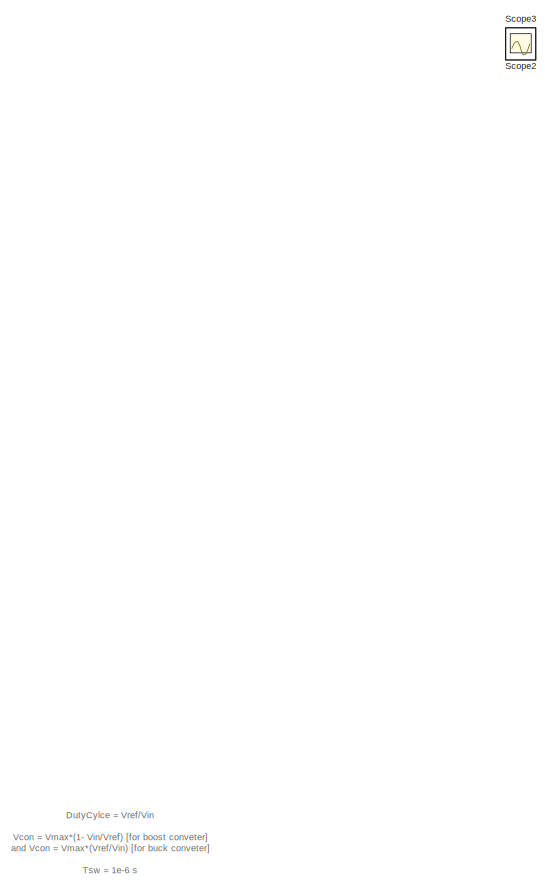
[diagram: root canvas - part 1/2, left side, full height]
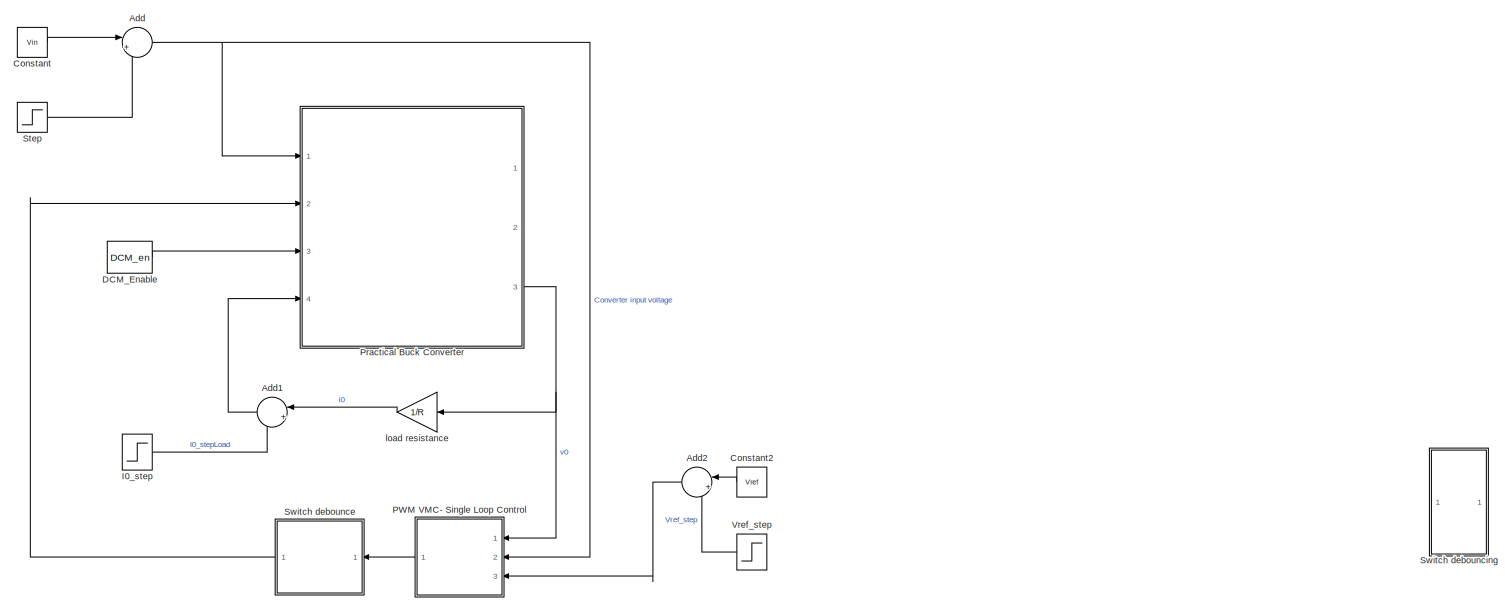
[diagram: root canvas - part 2/2, central region]
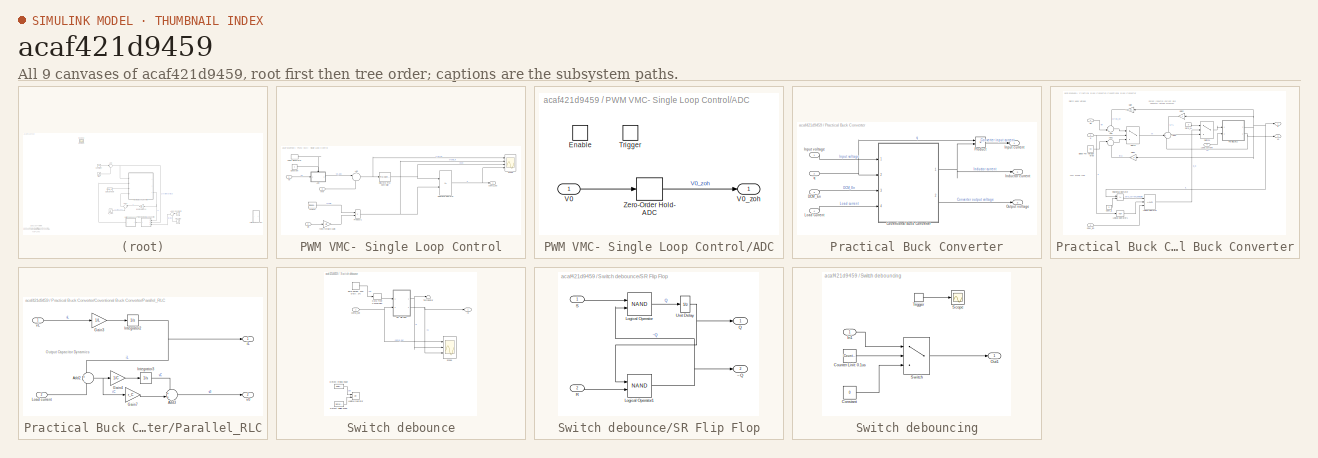
[diagram: thumbnail index - all 9 canvases of the model, root first then tree order]
MODEL slx_acaf421d9459
KIND model
CONFIG AbsTol = auto
CONFIG EnableMultiTasking = off
CONFIG FixedStep = Ts
CONFIG InitFcn = %init_practical_voltage_source;\ninit_parameters;
CONFIG MaxStep = auto
CONFIG MinStep = auto
CONFIG PostLoadFcn = , if any(exist('dsrtsu_mdlpostloadfcn', 'file') == [2, 3, 6]), try dsrtsu_mdlpostloadfcn('Execute', bdroot); catch fprintf('Error in PostLoadFcn (dsrtsu_mdlpostloadfcn) for model "%s":\n %s\n', bdroot, lasterr); end, end, \n%init_practical_voltage_source;\ninit_parameters;\n
CONFIG RelTol = 1e-3
CONFIG SampleTimeConstraint = Unconstrained
CONFIG Solver = FixedStepAuto
CONFIG SolverName = FixedStepAuto
CONFIG StartTime = 0.0
CONFIG StopTime = 3e-3
BLOCK [Sum] Add
  IconShape = round
  InputSameDT = off
  Inputs = |++
  OutDataTypeStr = Inherit: Inherit via internal rule
  Ports = [2, 1]
  SaturateOnIntegerOverflow = off
BLOCK [Sum] Add1
  IconShape = round
  InputSameDT = off
  Inputs = |++
  OutDataTypeStr = Inherit: Inherit via internal rule
  Ports = [2, 1]
  SaturateOnIntegerOverflow = off
BLOCK [Sum] Add2
  IconShape = round
  InputSameDT = off
  Inputs = |++
  OutDataTypeStr = Inherit: Inherit via internal rule
  Ports = [2, 1]
  SaturateOnIntegerOverflow = off
BLOCK [Constant] Constant
  Value = Vin
BLOCK [Constant] Constant2
  Value = Vref
BLOCK [Constant] DCM_Enable
  OutDataTypeStr = boolean
  Value = DCM_en
BLOCK [Step] I0_step
  After = I0_final
  SampleTime = Ts
  Time = I0_stepTime
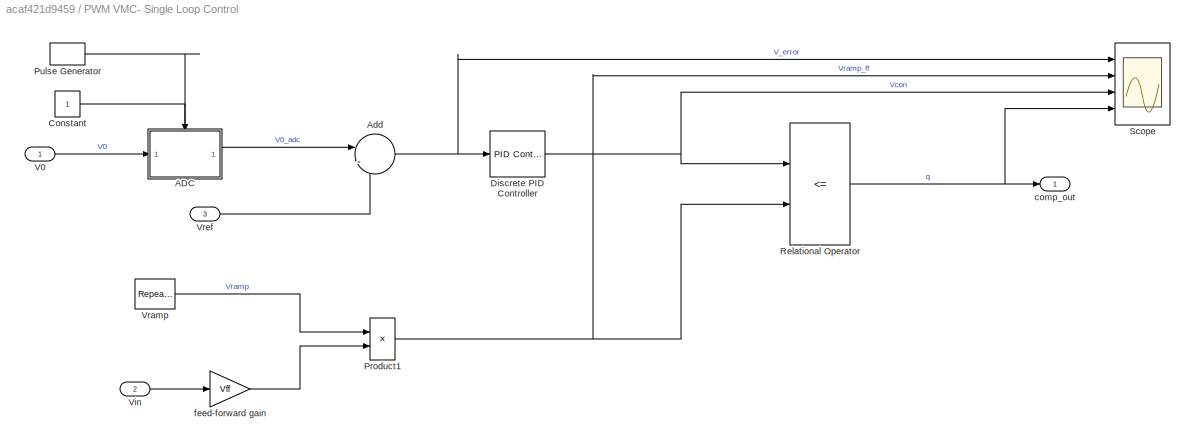
BLOCK [SubSystem] PWM VMC- Single Loop Control
  Ports = [3, 1]
  RequestExecContextInheritance = off
  Variant = off
BLOCK [SubSystem] PWM VMC- Single Loop Control/ADC
  Ports = [1, 1, 1, 1]
  RequestExecContextInheritance = off
  ShowPortLabels = none
  Variant = off
BLOCK [EnablePort] PWM VMC- Single Loop Control/ADC/Enable
  Ports = []
BLOCK [TriggerPort] PWM VMC- Single Loop Control/ADC/Trigger
  PortDimensions = 1
  Ports = []
  StatesWhenEnabling = held
  VariantControl = Variant
BLOCK [Inport] PWM VMC- Single Loop Control/ADC/V0
  IconDisplay = Port number
BLOCK [Outport] PWM VMC- Single Loop Control/ADC/V0_zoh
  IconDisplay = Port number
BLOCK [ZeroOrderHold] PWM VMC- Single Loop Control/ADC/Zero-Order Hold- ADC
  SampleTime = -1
BLOCK [Sum] PWM VMC- Single Loop Control/Add
  IconShape = round
  InputSameDT = off
  Inputs = |-+
  OutDataTypeStr = Inherit: Inherit via internal rule
  Ports = [2, 1]
  SaturateOnIntegerOverflow = off
BLOCK [Constant] PWM VMC- Single Loop Control/Constant
BLOCK [Reference] PWM VMC- Single Loop Control/Discrete PID Controller  REF=simulink/Continuous/PID Controller
  Ports = [1, 1]
  SourceBlock = simulink/Continuous/PID Controller
  SourceProductBaseCode = SL
  SourceType = PID 1dof
BLOCK [Product] PWM VMC- Single Loop Control/Product1
  InputSameDT = off
  OutDataTypeStr = Inherit: Inherit via internal rule
  Ports = [2, 1]
  RndMeth = Floor
  SaturateOnIntegerOverflow = off
BLOCK [DiscretePulseGenerator] PWM VMC- Single Loop Control/Pulse Generator
  Period = Tsw
  PhaseDelay = t_s
  Ports = [0, 1]
  PulseType = Time based
BLOCK [RelationalOperator] PWM VMC- Single Loop Control/Relational Operator
  InputSameDT = off
  Operator = <=
  OutDataTypeStr = boolean
  Ports = [2, 1]
  RndMeth = Simplest
BLOCK [Scope] PWM VMC- Single Loop Control/Scope
  NumInputPorts = 4
  Ports = [4]
  ScopeSpecificationString = Simulink.scopes.TimeScopeBlockCfg('CurrentConfiguration', extmgr.ConfigurationSet(extmgr.Configuration('Core','General UI',true),extmgr.Configuration('Core','Source UI',true),extmgr.Configuration('Sources','WiredSimulink',true,'DataLoggingVariableName','ScopeData1'),extmgr.Configuration('Visuals','Time Domain',true,'SerializedDisplays',{struct('MinYLimReal','-1.37062','MaxYLimReal','1.2634','YLabe...<+3433ch>
BLOCK [Inport] PWM VMC- Single Loop Control/V0
  IconDisplay = Port number
BLOCK [Inport] PWM VMC- Single Loop Control/Vin
  IconDisplay = Port number
  Port = 2
BLOCK [Reference] PWM VMC- Single Loop Control/Vramp  REF=simulink/Sources/Repeating
Sequence
  Ports = [0, 1]
  SourceBlock = simulink/Sources/Repeating\nSequence
  SourceProductBaseCode = SL
  SourceType = Repeating table
BLOCK [Inport] PWM VMC- Single Loop Control/Vref
  IconDisplay = Port number
  Port = 3
BLOCK [Outport] PWM VMC- Single Loop Control/comp_out
  IconDisplay = Port number
BLOCK [Gain] PWM VMC- Single Loop Control/feed-forward gain
  Gain = Vff
  OutDataTypeStr = Inherit: Inherit via internal rule
  ParamDataTypeStr = Inherit: Inherit via internal rule
  SaturateOnIntegerOverflow = off
BLOCK [SubSystem] Practical Buck Converter
  Ports = [4, 3]
  RequestExecContextInheritance = off
  Variant = off
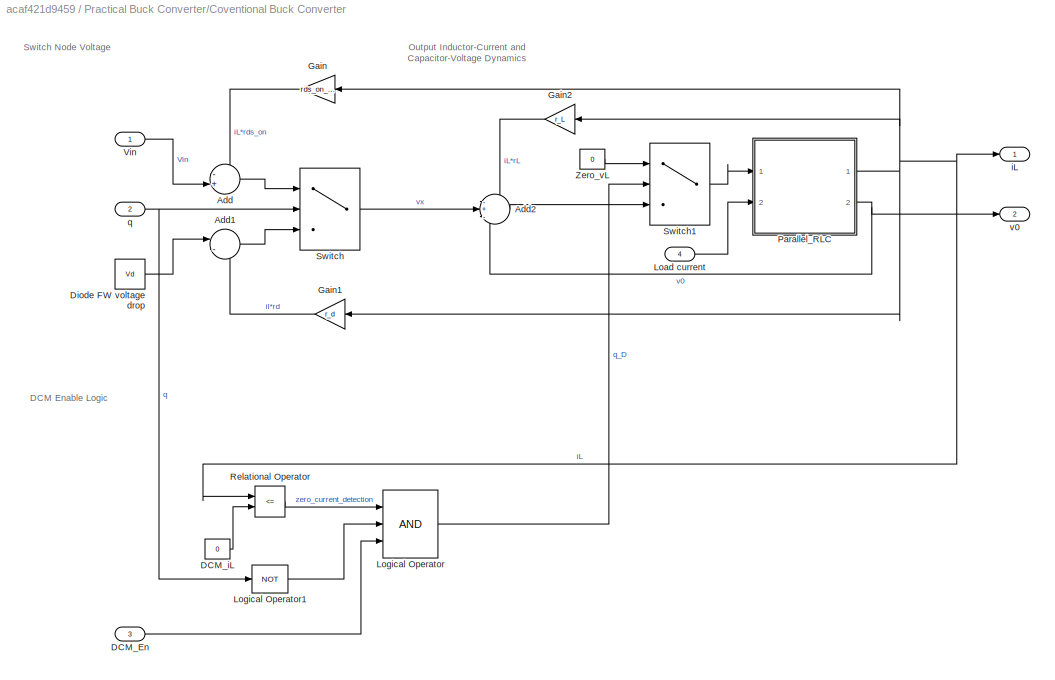
BLOCK [SubSystem] Practical Buck Converter/Coventional Buck Converter
  Ports = [4, 2]
  RequestExecContextInheritance = off
  Variant = off
BLOCK [Sum] Practical Buck Converter/Coventional Buck Converter/Add
  IconShape = round
  InputSameDT = off
  Inputs = -+|
  OutDataTypeStr = Inherit: Inherit via internal rule
  Ports = [2, 1]
  SaturateOnIntegerOverflow = off
BLOCK [Sum] Practical Buck Converter/Coventional Buck Converter/Add1
  IconShape = round
  InputSameDT = off
  Inputs = |--
  OutDataTypeStr = Inherit: Inherit via internal rule
  Ports = [2, 1]
  SaturateOnIntegerOverflow = off
BLOCK [Sum] Practical Buck Converter/Coventional Buck Converter/Add2
  IconShape = round
  InputSameDT = off
  Inputs = -+-
  OutDataTypeStr = Inherit: Inherit via internal rule
  Ports = [3, 1]
  SaturateOnIntegerOverflow = off
BLOCK [Inport] Practical Buck Converter/Coventional Buck Converter/DCM_En
  IconDisplay = Port number
  Port = 3
BLOCK [Constant] Practical Buck Converter/Coventional Buck Converter/DCM_iL
  Value = 0
BLOCK [Constant] Practical Buck Converter/Coventional Buck Converter/Diode FW voltage drop
  Value = Vd
BLOCK [Gain] Practical Buck Converter/Coventional Buck Converter/Gain
  Gain = rds_on_sw1
  OutDataTypeStr = Inherit: Inherit via internal rule
  ParamDataTypeStr = Inherit: Inherit via internal rule
  SaturateOnIntegerOverflow = off
BLOCK [Gain] Practical Buck Converter/Coventional Buck Converter/Gain1
  Gain = r_d
  OutDataTypeStr = Inherit: Inherit via internal rule
  ParamDataTypeStr = Inherit: Inherit via internal rule
  SaturateOnIntegerOverflow = off
BLOCK [Gain] Practical Buck Converter/Coventional Buck Converter/Gain2
  Gain = r_L
  OutDataTypeStr = Inherit: Inherit via internal rule
  ParamDataTypeStr = Inherit: Inherit via internal rule
  SaturateOnIntegerOverflow = off
BLOCK [Inport] Practical Buck Converter/Coventional Buck Converter/Load current
  IconDisplay = Port number
  Port = 4
BLOCK [Logic] Practical Buck Converter/Coventional Buck Converter/Logical Operator
  AllPortsSameDT = off
  IconShape = distinctive
  Inputs = 3
  OutDataTypeStr = boolean
  Ports = [3, 1]
BLOCK [Logic] Practical Buck Converter/Coventional Buck Converter/Logical Operator1
  AllPortsSameDT = off
  IconShape = distinctive
  Inputs = 3
  Operator = NOT
  OutDataTypeStr = boolean
  Ports = [1, 1]
BLOCK [SubSystem] Practical Buck Converter/Coventional Buck Converter/Parallel_RLC
  Ports = [2, 2]
  RequestExecContextInheritance = off
  Variant = off
BLOCK [Sum] Practical Buck Converter/Coventional Buck Converter/Parallel_RLC/Add2
  IconShape = round
  InputSameDT = off
  Inputs = +|-
  OutDataTypeStr = Inherit: Inherit via internal rule
  Ports = [2, 1]
  SaturateOnIntegerOverflow = off
BLOCK [Sum] Practical Buck Converter/Coventional Buck Converter/Parallel_RLC/Add3
  IconShape = round
  InputSameDT = off
  Inputs = ++|
  OutDataTypeStr = Inherit: Inherit via internal rule
  Ports = [2, 1]
  SaturateOnIntegerOverflow = off
BLOCK [Gain] Practical Buck Converter/Coventional Buck Converter/Parallel_RLC/Gain3
  Gain = 1/L
  OutDataTypeStr = Inherit: Inherit via internal rule
  ParamDataTypeStr = Inherit: Inherit via internal rule
  SaturateOnIntegerOverflow = off
BLOCK [Gain] Practical Buck Converter/Coventional Buck Converter/Parallel_RLC/Gain4
  Gain = 1/C
  OutDataTypeStr = Inherit: Inherit via internal rule
  ParamDataTypeStr = Inherit: Inherit via internal rule
  SaturateOnIntegerOverflow = off
BLOCK [Gain] Practical Buck Converter/Coventional Buck Converter/Parallel_RLC/Gain7
  Gain = r_C
  OutDataTypeStr = Inherit: Inherit via internal rule
  ParamDataTypeStr = Inherit: Inherit via internal rule
  SaturateOnIntegerOverflow = off
BLOCK [Integrator] Practical Buck Converter/Coventional Buck Converter/Parallel_RLC/Integrator2
  InitialCondition = i_L_init
  Ports = [1, 1]
BLOCK [Integrator] Practical Buck Converter/Coventional Buck Converter/Parallel_RLC/Integrator3
  InitialCondition = v_C_init
  Ports = [1, 1]
BLOCK [Inport] Practical Buck Converter/Coventional Buck Converter/Parallel_RLC/Load current
  IconDisplay = Port number
  Port = 2
BLOCK [Outport] Practical Buck Converter/Coventional Buck Converter/Parallel_RLC/iL
  IconDisplay = Port number
BLOCK [Outport] Practical Buck Converter/Coventional Buck Converter/Parallel_RLC/v0
  IconDisplay = Port number
  Port = 2
BLOCK [Inport] Practical Buck Converter/Coventional Buck Converter/Parallel_RLC/vL
  IconDisplay = Port number
BLOCK [RelationalOperator] Practical Buck Converter/Coventional Buck Converter/Relational Operator
  InputSameDT = off
  Operator = <=
  OutDataTypeStr = boolean
  Ports = [2, 1]
  RndMeth = Simplest
BLOCK [Switch] Practical Buck Converter/Coventional Buck Converter/Switch
  Criteria = u2 > Threshold
  InputSameDT = off
  SaturateOnIntegerOverflow = off
  Threshold = 0.5
BLOCK [Switch] Practical Buck Converter/Coventional Buck Converter/Switch1
  Criteria = u2 > Threshold
  InputSameDT = off
  SaturateOnIntegerOverflow = off
  Threshold = 0.5
BLOCK [Inport] Practical Buck Converter/Coventional Buck Converter/Vin
  IconDisplay = Port number
BLOCK [Constant] Practical Buck Converter/Coventional Buck Converter/Zero_vL
  Value = 0
BLOCK [Outport] Practical Buck Converter/Coventional Buck Converter/iL
  IconDisplay = Port number
BLOCK [Inport] Practical Buck Converter/Coventional Buck Converter/q
  IconDisplay = Port number
  Port = 2
BLOCK [Outport] Practical Buck Converter/Coventional Buck Converter/v0
  IconDisplay = Port number
  Port = 2
BLOCK [Inport] Practical Buck Converter/DCM_En
  IconDisplay = Port number
  Port = 3
BLOCK [Outport] Practical Buck Converter/Inductor current
  IconDisplay = Port number
  Port = 2
BLOCK [Outport] Practical Buck Converter/Input current
  IconDisplay = Port number
BLOCK [Inport] Practical Buck Converter/Input voltage
  IconDisplay = Port number
BLOCK [Inport] Practical Buck Converter/Load Current
  IconDisplay = Port number
  Port = 4
BLOCK [Outport] Practical Buck Converter/Output voltage
  IconDisplay = Port number
  Port = 3
BLOCK [Product] Practical Buck Converter/Product
  InputSameDT = off
  OutDataTypeStr = Inherit: Inherit via internal rule
  Ports = [2, 1]
  RndMeth = Floor
  SaturateOnIntegerOverflow = off
BLOCK [Inport] Practical Buck Converter/q
  IconDisplay = Port number
  Port = 2
BLOCK [Scope] Scope2
  IOType = viewer
  NumInputPorts = 1
  Ports = []
  ScopeSpecificationString = Simulink.scopes.TimeScopeBlockCfg('CurrentConfiguration', extmgr.ConfigurationSet(extmgr.Configuration('Core','General UI',true),extmgr.Configuration('Core','Source UI',true),extmgr.Configuration('Sources','WiredSimulink',true,'DataLoggingVariableName','ScopeData1'),extmgr.Configuration('Visuals','Time Domain',true,'SerializedDisplays',{struct('MinYLimReal','-0.125','MaxYLimReal','1.125','YLabelRe...<+1482ch>
BLOCK [Scope] Scope3
  IOType = viewer
  NumInputPorts = 1
  Ports = []
  ScopeSpecificationString = Simulink.scopes.TimeScopeBlockCfg('CurrentConfiguration', extmgr.ConfigurationSet(extmgr.Configuration('Core','General UI',true),extmgr.Configuration('Core','Source UI',true),extmgr.Configuration('Sources','WiredSimulink',true,'DataLoggingVariableName','ScopeData2'),extmgr.Configuration('Visuals','Time Domain',true,'SerializedDisplays',{struct('MinYLimReal','-5.75','MaxYLimReal','51.75','YLabelRea...<+1775ch>
BLOCK [Step] Step
  After = Vin_final
  SampleTime = 0
  Time = T_Vin_stepTime
BLOCK [SubSystem] Switch debounce
  Ports = [1, 1]
  RequestExecContextInheritance = off
  Variant = off
BLOCK [DataTypeConversion] Switch debounce/Data Type Conversion
  RndMeth = Floor
  SaturateOnIntegerOverflow = off
BLOCK [Reference] Switch debounce/Detect Falling enge  REF=simulink/Logic and Bit
Operations/Detect
Decrease
  Commented = on
  Ports = [1, 1]
  SourceBlock = simulink/Logic and Bit\nOperations/Detect\nDecrease
  SourceProductBaseCode = SL
  SourceType = Detect Decrease
BLOCK [Reference] Switch debounce/Detect Rising edge  REF=simulink/Logic and Bit
Operations/Detect
Increase
  Commented = on
  Ports = [1, 1]
  SourceBlock = simulink/Logic and Bit\nOperations/Detect\nIncrease
  SourceProductBaseCode = SL
  SourceType = Detect Increase
BLOCK [Logic] Switch debounce/Logical Operator
  AllPortsSameDT = off
  Commented = on
  IconShape = distinctive
  Operator = OR
  OutDataTypeStr = boolean
  Ports = [2, 1]
BLOCK [SubSystem] Switch debounce/SR Flip Flop
  Ports = [2, 2]
  RequestExecContextInheritance = off
  Variant = off
BLOCK [Logic] Switch debounce/SR Flip Flop/Logical Operator
  AllPortsSameDT = off
  IconShape = distinctive
  Operator = NAND
  OutDataTypeStr = boolean
  Ports = [2, 1]
BLOCK [Logic] Switch debounce/SR Flip Flop/Logical Operator1
  AllPortsSameDT = off
  IconShape = distinctive
  Operator = NAND
  OutDataTypeStr = boolean
  Ports = [2, 1]
BLOCK [Outport] Switch debounce/SR Flip Flop/Q
  IconDisplay = Port number
BLOCK [Inport] Switch debounce/SR Flip Flop/R
  IconDisplay = Port number
  Port = 2
BLOCK [Inport] Switch debounce/SR Flip Flop/S
  IconDisplay = Port number
BLOCK [UnitDelay] Switch debounce/SR Flip Flop/Unit Delay
  InputProcessing = Elements as channels (sample based)
  SampleTime = -1
BLOCK [Outport] Switch debounce/SR Flip Flop/~Q
  IconDisplay = Port number
  Port = 2
BLOCK [Scope] Switch debounce/Scope
  NumInputPorts = 3
  Ports = [3]
  ScopeSpecificationString = Simulink.scopes.TimeScopeBlockCfg('CurrentConfiguration', extmgr.ConfigurationSet(extmgr.Configuration('Core','General UI',true),extmgr.Configuration('Core','Source UI',true),extmgr.Configuration('Sources','WiredSimulink',true,'DataLoggingVariableName','ScopeData2'),extmgr.Configuration('Visuals','Time Domain',true,'SerializedDisplays',{struct('MinYLimReal','-0.125','MaxYLimReal','1.125','YLabelRe...<+2796ch>
BLOCK [Terminator] Switch debounce/Terminator
BLOCK [DiscretePulseGenerator] Switch debounce/Time period: Tsw Duty: 1%
  Period = Tsw
  Ports = [0, 1]
  PulseType = Time based
BLOCK [Inport] Switch debounce/comp_out
  IconDisplay = Port number
BLOCK [Outport] Switch debounce/~q
  IconDisplay = Port number
BLOCK [SubSystem] Switch debouncing
  Commented = on
  Ports = [1, 1, 0, 1]
  RequestExecContextInheritance = off
  TreatAsAtomicUnit = on
  Variant = off
BLOCK [Constant] Switch debouncing/Constant
  Value = 0
BLOCK [Reference] Switch debouncing/Counter Linit: 0.1us  REF=simulink/Sources/Counter
Limited
  Ports = [0, 1]
  SourceBlock = simulink/Sources/Counter\nLimited
  SourceProductBaseCode = SL
  SourceType = Counter Limited
BLOCK [Inport] Switch debouncing/In1
  IconDisplay = Port number
BLOCK [Outport] Switch debouncing/Out1
  IconDisplay = Port number
BLOCK [Scope] Switch debouncing/Scope
  NumInputPorts = 1
  Ports = [1]
  ScopeSpecificationString = Simulink.scopes.TimeScopeBlockCfg('CurrentConfiguration', extmgr.ConfigurationSet(extmgr.Configuration('Core','General UI',true),extmgr.Configuration('Core','Source UI',true),extmgr.Configuration('Sources','WiredSimulink',true,'DataLoggingVariableName','ScopeData4'),extmgr.Configuration('Visuals','Time Domain',true,'SerializedDisplays',{struct('MinYLimReal','0.9','MaxYLimReal','1.1','YLabelReal','...<+1357ch>
BLOCK [Switch] Switch debouncing/Switch
  InputSameDT = off
  SaturateOnIntegerOverflow = off
  Threshold = (0.45e-6/Ts) + 1
BLOCK [TriggerPort] Switch debouncing/Trigger
  PortDimensions = 1
  Ports = [0, 1]
  ShowOutputPort = on
  StatesWhenEnabling = held
  VariantControl = Variant
BLOCK [Step] Vref_step
  After = Vref_final
  SampleTime = Ts
  Time = Vref_stepTime
BLOCK [Gain] load resistance
  Gain = 1/R
  OutDataTypeStr = Inherit: Inherit via internal rule
  ParamDataTypeStr = Inherit: Inherit via internal rule
  SaturateOnIntegerOverflow = off
ANNOTATION (root): DutyCylce = Vref/Vin Vcon = Vmax*(1- Vin/Vref) [for boost conveter] and Vcon = Vmax*(Vref/Vin) [for buck conveter] Tsw = 1e-6 s Vref starts with 3.3V and after 1ms, it is set to 2.3V. DutyCycle shall be adapted accordingly and coverter states can be observed. Ideal voltage source is replaced by practical voltage source to aacout for psu output impedance (i.e. output resistance and finit bandwidt) ...<+125ch>
ANNOTATION Practical Buck Converter/Coventional Buck Converter: DCM Enable Logic
ANNOTATION Practical Buck Converter/Coventional Buck Converter: Output Inductor-Current and Capacitor-Voltage Dynamics
ANNOTATION Practical Buck Converter/Coventional Buck Converter: Switch Node Voltage
ANNOTATION Practical Buck Converter/Coventional Buck Converter/Parallel_RLC: Output Capacitor Dynamics
LINE Add1:1 -> Practical Buck Converter:4
LINE Add2:1 -> PWM VMC- Single Loop Control:3
NET Add:1 -> PWM VMC- Single Loop Control:2, Practical Buck Converter:1
LINE Constant2:1 -> Add2:1
LINE Constant:1 -> Add:1
LINE DCM_Enable:1 -> Practical Buck Converter:3
LINE I0_step:1 -> Add1:2
LINE PWM VMC- Single Loop Control/ADC/V0:1 -> PWM VMC- Single Loop Control/ADC/Zero-Order Hold- ADC:1
LINE PWM VMC- Single Loop Control/ADC/Zero-Order Hold- ADC:1 -> PWM VMC- Single Loop Control/ADC/V0_zoh:1
LINE PWM VMC- Single Loop Control/ADC:1 -> PWM VMC- Single Loop Control/Add:1
NET PWM VMC- Single Loop Control/Add:1 -> PWM VMC- Single Loop Control/Discrete PID Controller:1, PWM VMC- Single Loop Control/Scope:1
LINE PWM VMC- Single Loop Control/Constant:1 -> PWM VMC- Single Loop Control/ADC:enable
NET PWM VMC- Single Loop Control/Discrete PID Controller:1 -> PWM VMC- Single Loop Control/Relational Operator:1, PWM VMC- Single Loop Control/Scope:3
NET PWM VMC- Single Loop Control/Product1:1 -> PWM VMC- Single Loop Control/Relational Operator:2, PWM VMC- Single Loop Control/Scope:2
LINE PWM VMC- Single Loop Control/Pulse Generator:1 -> PWM VMC- Single Loop Control/ADC:trigger
NET PWM VMC- Single Loop Control/Relational Operator:1 -> PWM VMC- Single Loop Control/Scope:4, PWM VMC- Single Loop Control/comp_out:1
LINE PWM VMC- Single Loop Control/V0:1 -> PWM VMC- Single Loop Control/ADC:1
LINE PWM VMC- Single Loop Control/Vin:1 -> PWM VMC- Single Loop Control/feed-forward gain:1
LINE PWM VMC- Single Loop Control/Vramp:1 -> PWM VMC- Single Loop Control/Product1:1
LINE PWM VMC- Single Loop Control/Vref:1 -> PWM VMC- Single Loop Control/Add:2
LINE PWM VMC- Single Loop Control/feed-forward gain:1 -> PWM VMC- Single Loop Control/Product1:2
LINE PWM VMC- Single Loop Control:1 -> Switch debounce:1
LINE Practical Buck Converter/Coventional Buck Converter/Add1:1 -> Practical Buck Converter/Coventional Buck Converter/Switch:3
LINE Practical Buck Converter/Coventional Buck Converter/Add2:1 -> Practical Buck Converter/Coventional Buck Converter/Switch1:3
LINE Practical Buck Converter/Coventional Buck Converter/Add:1 -> Practical Buck Converter/Coventional Buck Converter/Switch:1
LINE Practical Buck Converter/Coventional Buck Converter/DCM_En:1 -> Practical Buck Converter/Coventional Buck Converter/Logical Operator:3
LINE Practical Buck Converter/Coventional Buck Converter/DCM_iL:1 -> Practical Buck Converter/Coventional Buck Converter/Relational Operator:2
LINE Practical Buck Converter/Coventional Buck Converter/Diode FW voltage drop:1 -> Practical Buck Converter/Coventional Buck Converter/Add1:1
LINE Practical Buck Converter/Coventional Buck Converter/Gain1:1 -> Practical Buck Converter/Coventional Buck Converter/Add1:2
LINE Practical Buck Converter/Coventional Buck Converter/Gain2:1 -> Practical Buck Converter/Coventional Buck Converter/Add2:1
LINE Practical Buck Converter/Coventional Buck Converter/Gain:1 -> Practical Buck Converter/Coventional Buck Converter/Add:1
LINE Practical Buck Converter/Coventional Buck Converter/Load current:1 -> Practical Buck Converter/Coventional Buck Converter/Parallel_RLC:2
LINE Practical Buck Converter/Coventional Buck Converter/Logical Operator1:1 -> Practical Buck Converter/Coventional Buck Converter/Logical Operator:2
LINE Practical Buck Converter/Coventional Buck Converter/Logical Operator:1 -> Practical Buck Converter/Coventional Buck Converter/Switch1:2
NET Practical Buck Converter/Coventional Buck Converter/Parallel_RLC/Add2:1 -> Practical Buck Converter/Coventional Buck Converter/Parallel_RLC/Gain4:1, Practical Buck Converter/Coventional Buck Converter/Parallel_RLC/Gain7:1
LINE Practical Buck Converter/Coventional Buck Converter/Parallel_RLC/Add3:1 -> Practical Buck Converter/Coventional Buck Converter/Parallel_RLC/v0:1
LINE Practical Buck Converter/Coventional Buck Converter/Parallel_RLC/Gain3:1 -> Practical Buck Converter/Coventional Buck Converter/Parallel_RLC/Integrator2:1
LINE Practical Buck Converter/Coventional Buck Converter/Parallel_RLC/Gain4:1 -> Practical Buck Converter/Coventional Buck Converter/Parallel_RLC/Integrator3:1
LINE Practical Buck Converter/Coventional Buck Converter/Parallel_RLC/Gain7:1 -> Practical Buck Converter/Coventional Buck Converter/Parallel_RLC/Add3:2
NET Practical Buck Converter/Coventional Buck Converter/Parallel_RLC/Integrator2:1 -> Practical Buck Converter/Coventional Buck Converter/Parallel_RLC/Add2:1, Practical Buck Converter/Coventional Buck Converter/Parallel_RLC/iL:1
LINE Practical Buck Converter/Coventional Buck Converter/Parallel_RLC/Integrator3:1 -> Practical Buck Converter/Coventional Buck Converter/Parallel_RLC/Add3:1
LINE Practical Buck Converter/Coventional Buck Converter/Parallel_RLC/Load current:1 -> Practical Buck Converter/Coventional Buck Converter/Parallel_RLC/Add2:2
LINE Practical Buck Converter/Coventional Buck Converter/Parallel_RLC/vL:1 -> Practical Buck Converter/Coventional Buck Converter/Parallel_RLC/Gain3:1
NET Practical Buck Converter/Coventional Buck Converter/Parallel_RLC:1 -> Practical Buck Converter/Coventional Buck Converter/Gain1:1, Practical Buck Converter/Coventional Buck Converter/Gain2:1, Practical Buck Converter/Coventional Buck Converter/Gain:1, Practical Buck Converter/Coventional Buck Converter/Relational Operator:1, Practical Buck Converter/Coventional Buck Converter/iL:1
NET Practical Buck Converter/Coventional Buck Converter/Parallel_RLC:2 -> Practical Buck Converter/Coventional Buck Converter/Add2:3, Practical Buck Converter/Coventional Buck Converter/v0:1
LINE Practical Buck Converter/Coventional Buck Converter/Relational Operator:1 -> Practical Buck Converter/Coventional Buck Converter/Logical Operator:1
LINE Practical Buck Converter/Coventional Buck Converter/Switch1:1 -> Practical Buck Converter/Coventional Buck Converter/Parallel_RLC:1
LINE Practical Buck Converter/Coventional Buck Converter/Switch:1 -> Practical Buck Converter/Coventional Buck Converter/Add2:2
LINE Practical Buck Converter/Coventional Buck Converter/Vin:1 -> Practical Buck Converter/Coventional Buck Converter/Add:2
LINE Practical Buck Converter/Coventional Buck Converter/Zero_vL:1 -> Practical Buck Converter/Coventional Buck Converter/Switch1:1
NET Practical Buck Converter/Coventional Buck Converter/q:1 -> Practical Buck Converter/Coventional Buck Converter/Logical Operator1:1, Practical Buck Converter/Coventional Buck Converter/Switch:2
NET Practical Buck Converter/Coventional Buck Converter:1 -> Practical Buck Converter/Inductor current:1, Practical Buck Converter/Product:2
LINE Practical Buck Converter/Coventional Buck Converter:2 -> Practical Buck Converter/Output voltage:1
LINE Practical Buck Converter/DCM_En:1 -> Practical Buck Converter/Coventional Buck Converter:3
LINE Practical Buck Converter/Input voltage:1 -> Practical Buck Converter/Coventional Buck Converter:1
LINE Practical Buck Converter/Load Current:1 -> Practical Buck Converter/Coventional Buck Converter:4
LINE Practical Buck Converter/Product:1 -> Practical Buck Converter/Input current:1
NET Practical Buck Converter/q:1 -> Practical Buck Converter/Coventional Buck Converter:2, Practical Buck Converter/Product:1
NET Practical Buck Converter:3 -> PWM VMC- Single Loop Control:1, load resistance:1
LINE Step:1 -> Add:2
LINE Switch debounce/Data Type Conversion:1 -> Switch debounce/SR Flip Flop:1
LINE Switch debounce/Detect Falling enge:1 -> Switch debounce/Logical Operator:2
LINE Switch debounce/Detect Rising edge:1 -> Switch debounce/Logical Operator:1
NET Switch debounce/SR Flip Flop/Logical Operator1:1 -> Switch debounce/SR Flip Flop/Logical Operator:2, Switch debounce/SR Flip Flop/~Q:1
LINE Switch debounce/SR Flip Flop/Logical Operator:1 -> Switch debounce/SR Flip Flop/Unit Delay:1
LINE Switch debounce/SR Flip Flop/R:1 -> Switch debounce/SR Flip Flop/Logical Operator1:2
LINE Switch debounce/SR Flip Flop/S:1 -> Switch debounce/SR Flip Flop/Logical Operator:1
NET Switch debounce/SR Flip Flop/Unit Delay:1 -> Switch debounce/SR Flip Flop/Logical Operator1:1, Switch debounce/SR Flip Flop/Q:1
NET Switch debounce/SR Flip Flop:1 -> Switch debounce/Scope:2, Switch debounce/Terminator:1
NET Switch debounce/SR Flip Flop:2 -> Switch debounce/Scope:3, Switch debounce/~q:1
LINE Switch debounce/Time period: Tsw Duty: 1%:1 -> Switch debounce/Data Type Conversion:1
NET Switch debounce/comp_out:1 -> Switch debounce/SR Flip Flop:2, Switch debounce/Scope:1
LINE Switch debounce:1 -> Practical Buck Converter:2
LINE Switch debouncing/Constant:1 -> Switch debouncing/Switch:3
LINE Switch debouncing/Counter Linit: 0.1us:1 -> Switch debouncing/Switch:2
LINE Switch debouncing/In1:1 -> Switch debouncing/Switch:1
LINE Switch debouncing/Switch:1 -> Switch debouncing/Out1:1
LINE Switch debouncing/Trigger:1 -> Switch debouncing/Scope:1
LINE Vref_step:1 -> Add2:2
LINE load resistance:1 -> Add1:1
note: NET lines group one-source signal fan-out (src -> all destinations, sorted); 1:1 wires keep LINE
